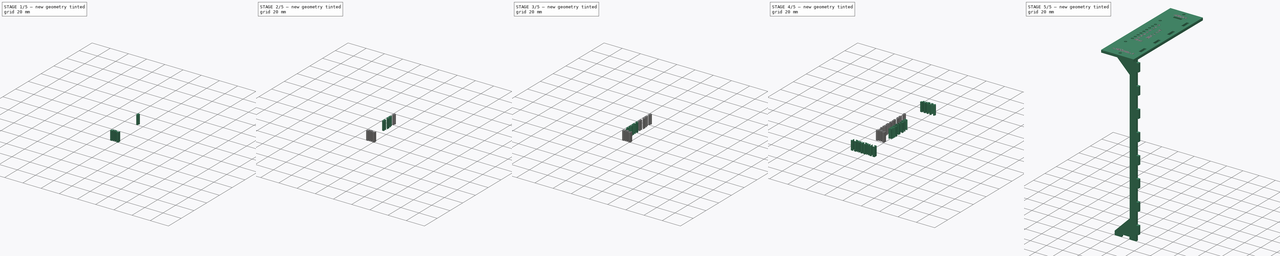
[diagram: build sequence overview — one tinted view per stage of 5, left to right]
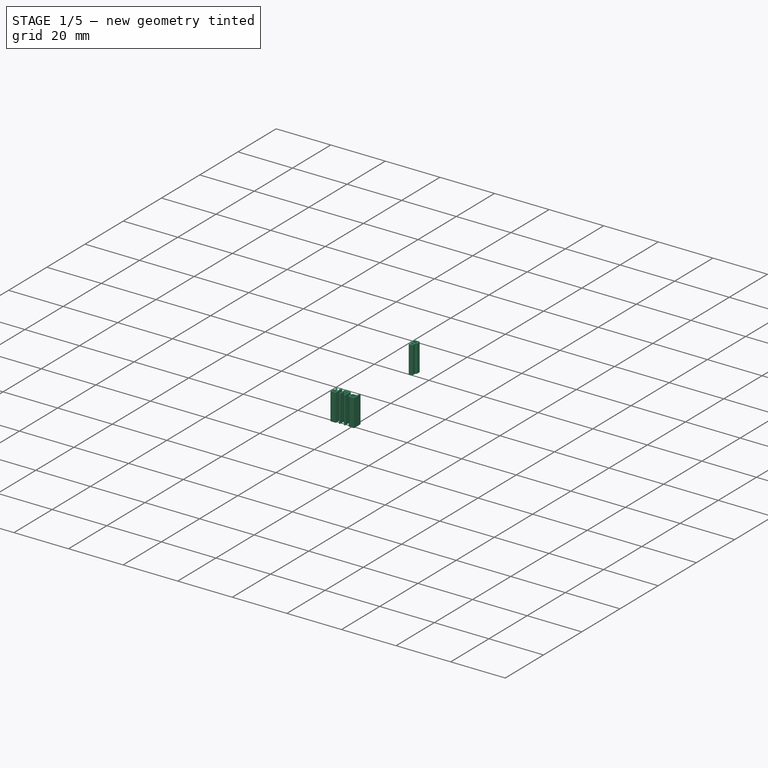
[diagram: stage 1 of 5 — iso view after this stage's code; geometry added in this stage tinted green]
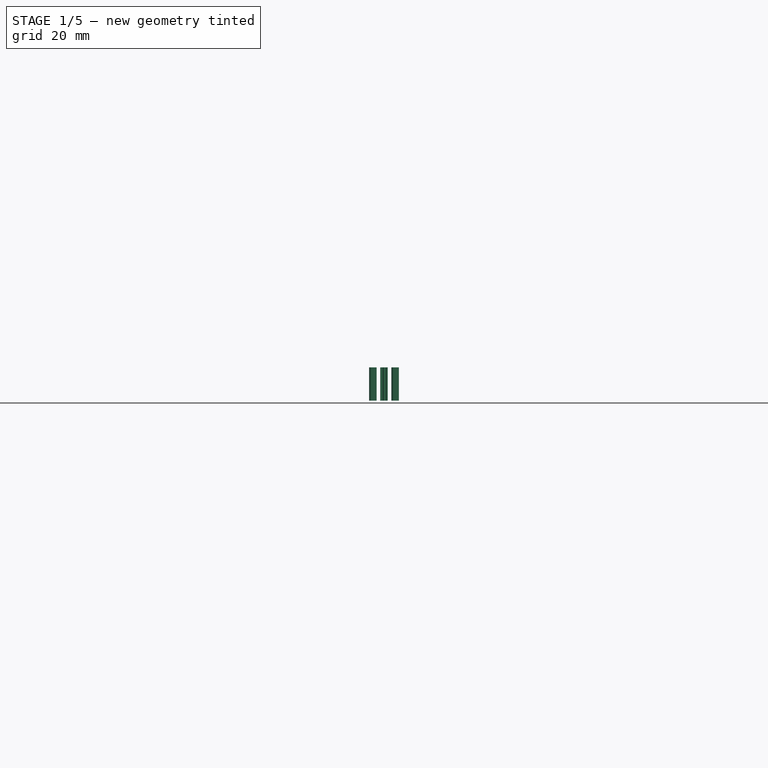
[diagram: stage 1 of 5 — front view after this stage's code; geometry added in this stage tinted green]
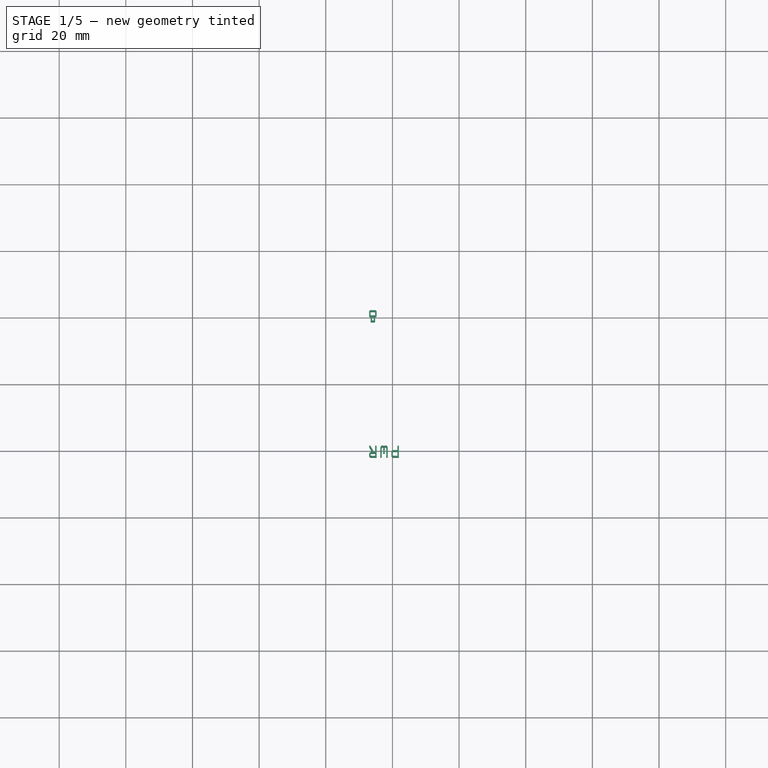
[diagram: stage 1 of 5 — top view after this stage's code; geometry added in this stage tinted green]
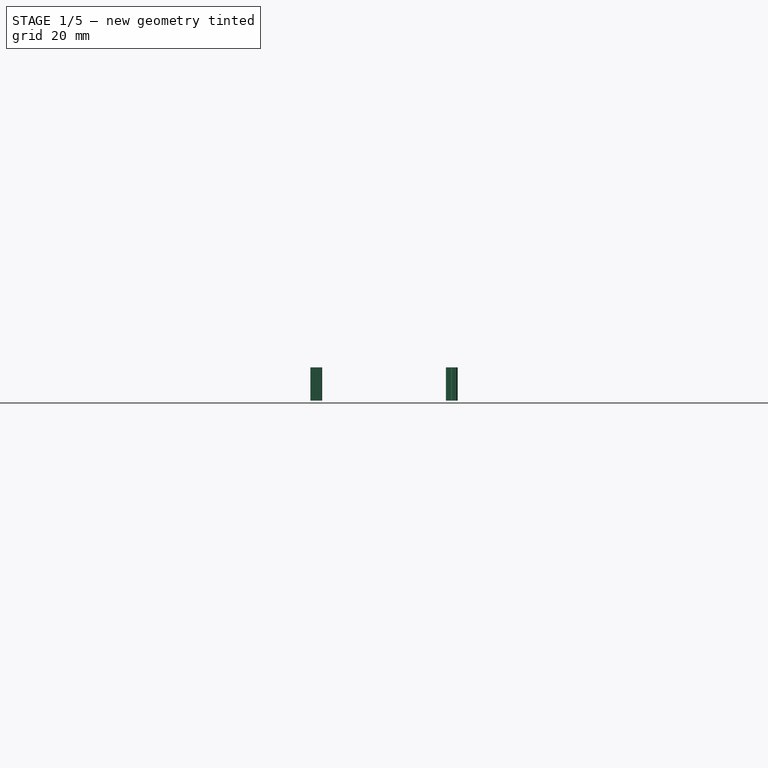
[diagram: stage 1 of 5 — right view after this stage's code; geometry added in this stage tinted green]
FCSTD DOCUMENT  (FreeCAD 0.18R16146 (Git))
Label: ZyXel_ES-108P_switch_box
License: All rights reserved
LicenseURL: http://en.wikipedia.org/wiki/All_rights_reserved
objects: Part::Part2DObjectPython×12, Part::Extrusion×12, Part::Feature×11, Part::FeaturePython×2, PartDesign::FeatureBase×2, Sketcher::SketchObject×2, PartDesign::Pocket×2, PartDesign::Body×2, App::DocumentObjectGroup×1, App::Part×1, Part::MultiFuse×1, Part::Cut×1
note: 49 computed .brp shape members not serialized (recipe doc carries the construction recipe); baked Part::Feature solids carry a one-line shape summary decoded from their .brp

FEATURE [Part::Feature] face_panel
  Placement = pos=(0,0,-1.5) rot=(0,0,1;0rad)
  shape: bbox 26.5 x 3 x 207 mm, 6 faces (baked)
FEATURE [Part::Feature] behind_panel
  Placement = pos=(0,-90.6,-1.5) rot=(0,0,1;0rad)
  shape: bbox 26.5 x 3 x 207 mm, 6 faces (baked)
FEATURE [Part::Feature] left_panel
  Placement = pos=(0,0,-1.5) rot=(0,0,1;0rad)
  shape: bbox 3 x 100 x 207 mm, 6 faces (baked)
FEATURE [Part::Feature] right_panel
  Placement = pos=(-29.5,0,-1.5) rot=(0,0,1;0rad)
  shape: bbox 3 x 100 x 207 mm, 6 faces (baked)
FEATURE [Part::Feature] bottom_panel
  Placement = pos=(0,0,-1.5) rot=(0,0,1;0rad)
  shape: bbox 26.5 x 87.6 x 3 mm, 6 faces (baked)
FEATURE [Part::Feature] top_panel
  Placement = pos=(0,0,-1.5) rot=(0,0,1;0rad)
  shape: bbox 40 x 122 x 3 mm, 6 faces (baked)
FEATURE [Part::FeaturePython] Box  # WARN: FeaturePython — macro-defined, semantics opaque (R4)
  parts = -> [face_panel,behind_panel,left_panel,right_panel,bottom_panel,top_panel]
FEATURE [App::DocumentObjectGroup] MultiJoin_origin_parts
  Group = -> [face_panel,left_panel,behind_panel,bottom_panel,top_panel]
FEATURE [Part::Feature] face_panel_tab
  shape: bbox 29.5 x 3 x 210 mm, 68 faces (baked)
FEATURE [Part::Feature] left_panel_tab
  shape: bbox 3 x 100 x 210 mm, 222 faces (baked)
FEATURE [Part::Feature] behind_panel_tab
  shape: bbox 29.5 x 3 x 210 mm, 68 faces (baked)
FEATURE [Part::Feature] bottom_panel_tab
  shape: bbox 29.5 x 93.6 x 3 mm, 42 faces (baked)
FEATURE [Part::Feature] top_panel_tab
  shape: bbox 40 x 122 x 3 mm, 66 faces (baked)
FEATURE [Part::FeaturePython] MultiJoin  # WARN: FeaturePython — macro-defined, semantics opaque (R4)
  fromParts = -> [MultiJoin_origin_parts,face_panel,left_panel,behind_panel,bottom_panel,top_panel]
  generatedParts = -> [face_panel_tab,left_panel_tab,behind_panel_tab,bottom_panel_tab,top_panel_tab]
FEATURE [PartDesign::FeatureBase] BaseFeature001
  BaseFeature = -> top_panel_tab
FEATURE [Sketcher::SketchObject] Sketch001
  ExternalGeometry = -> [BaseFeature001]
  MapMode = 5
  Placement = pos=(0,0,105) rot=(0,0,1;0rad)
  Support = -> [BaseFeature001]
  expr: Constraints[40] = Constraints.led_dia
  expr: Constraints[35] = Constraints.led_dia
  expr: Constraints[30] = Constraints.led_dia
  expr: Constraints[25] = Constraints.led_dia
  expr: Constraints[20] = Constraints.led_dia
  expr: Constraints[15] = Constraints.led_dia
  expr: Constraints[10] = Constraints.led_dia
  expr: Constraints[6] = Constraints.led_dia
  expr: Constraints[56] = Constraints.screw_dist
  expr: Constraints[55] = Constraints.spacing / 4
  expr: Constraints.screw_dist = Constraints.spacing * 2
  sketch-geometry (22):
    g0: Circle CenterX=-10 CenterY=-20.32 CenterZ=0 NormalX=0 NormalY=0 NormalZ=1 AngleXU=0 Radius=1.55
    g1: LineSegment [constr] StartX=-10 StartY=61 StartZ=0 EndX=-10 EndY=-61 EndZ=0
    g2: Circle CenterX=-10 CenterY=-15.24 CenterZ=0 NormalX=0 NormalY=0 NormalZ=1 AngleXU=0 Radius=1.55
    g3: LineSegment [constr] StartX=-10 StartY=-20.32 StartZ=0 EndX=-10 EndY=-15.24 EndZ=0
    g4: Circle CenterX=-10 CenterY=-10.16 CenterZ=0 NormalX=0 NormalY=0 NormalZ=1 AngleXU=0 Radius=1.55
    g5: LineSegment [constr] StartX=-10 StartY=-15.24 StartZ=0 EndX=-10 EndY=-10.16 EndZ=0
    g6: Circle CenterX=-10 CenterY=-5.08 CenterZ=0 NormalX=0 NormalY=0 NormalZ=1 AngleXU=0 Radius=1.55
    g7: LineSegment [constr] StartX=-10 StartY=-10.16 StartZ=0 EndX=-10 EndY=-5.08 EndZ=0
    g8: Circle CenterX=-10 CenterY=0 CenterZ=0 NormalX=0 NormalY=0 NormalZ=1 AngleXU=0 Radius=1.55
    g9: LineSegment [constr] StartX=-10 StartY=-5.08 StartZ=0 EndX=-10 EndY=0 EndZ=0
    g10: Circle CenterX=-10 CenterY=5.08 CenterZ=0 NormalX=0 NormalY=0 NormalZ=1 AngleXU=0 Radius=1.55
    g11: LineSegment [constr] StartX=-10 StartY=0 StartZ=0 EndX=-10 EndY=5.08 EndZ=0
    g12: Circle CenterX=-10 CenterY=10.16 CenterZ=0 NormalX=0 NormalY=0 NormalZ=1 AngleXU=0 Radius=1.55
    g13: LineSegment [constr] StartX=-10 StartY=5.08 StartZ=0 EndX=-10 EndY=10.16 EndZ=0
    g14: Circle CenterX=-10 CenterY=15.24 CenterZ=0 NormalX=0 NormalY=0 NormalZ=1 AngleXU=0 Radius=1.55
    g15: LineSegment [constr] StartX=-10 StartY=10.16 StartZ=0 EndX=-10 EndY=15.24 EndZ=0
    g16: Circle CenterX=-10 CenterY=20.32 CenterZ=0 NormalX=0 NormalY=0 NormalZ=1 AngleXU=0 Radius=1.55
    g17: LineSegment [constr] StartX=-10 StartY=15.24 StartZ=0 EndX=-10 EndY=20.32 EndZ=0
    g18: Circle CenterX=-11.27 CenterY=30.48 CenterZ=0 NormalX=0 NormalY=0 NormalZ=1 AngleXU=0 Radius=1.6
    g19: Circle CenterX=-11.27 CenterY=-30.48 CenterZ=0 NormalX=0 NormalY=0 NormalZ=1 AngleXU=0 Radius=1.6
    g20: Circle CenterX=0 CenterY=56 CenterZ=0 NormalX=0 NormalY=0 NormalZ=1 AngleXU=0 Radius=1.6
    g21: Circle CenterX=0 CenterY=-56 CenterZ=0 NormalX=0 NormalY=0 NormalZ=1 AngleXU=0 Radius=1.6
  constraints (59):
    c: Diameter(g0) = 3.1  'led_dia'
    c: Vertical(g1)
    c: PointOnObject(g1,g-4)
    c: PointOnObject(g1,g-3)
    c: DistanceX(g-4,g1) = 10
    c: PointOnObject(g0,g1)
    c: Diameter(g2) = 3.1
    c: Coincident(g0,g3)
    c: Coincident(g2,g3)
    c: Distance(g3) = 5.08  'spacing'
    c: Diameter(g4) = 3.1
    c: Coincident(g2,g5)
    c: Coincident(g4,g5)
    c: Equal(g3,g5)
    c: Parallel(g5,g3)
    c: Diameter(g6) = 3.1
    c: Coincident(g4,g7)
    c: Coincident(g6,g7)
    c: Equal(g3,g7)
    c: Parallel(g7,g3)
    c: Diameter(g8) = 3.1
    c: Coincident(g6,g9)
    c: Coincident(g8,g9)
    c: Equal(g3,g9)
    c: Parallel(g9,g3)
    c: Diameter(g10) = 3.1
    c: Coincident(g8,g11)
    c: Coincident(g10,g11)
    c: Equal(g3,g11)
    c: Parallel(g11,g3)
    c: Diameter(g12) = 3.1
    c: Coincident(g10,g13)
    c: Coincident(g12,g13)
    c: Equal(g3,g13)
    c: Parallel(g13,g3)
    c: Diameter(g14) = 3.1
    c: Coincident(g12,g15)
    c: Coincident(g14,g15)
    c: Equal(g3,g15)
    c: Parallel(g15,g3)
    c: Diameter(g16) = 3.1
    c: Coincident(g14,g17)
    c: Coincident(g16,g17)
    c: Equal(g3,g17)
    c: Parallel(g17,g3)
    c: PointOnObject(g1,g1)
    c: Diameter(g18) = 3.2
    c: Equal(g18,g19) = 3.2
    c: Vertical(g19,g18)
    c: DistanceY(g19,g0) = 10.16  'screw_dist'
    c: Equal(g18,g20) = 3.2
    c: PointOnObject(g21,g-2)
    c: DistanceY(g21,g20) = 112
    c: Symmetric(g20,g21,g-1)
    c: Diameter(g21) = 3.2
    c: DistanceX(g19,g0) = 1.27
    c: DistanceY(g16,g18) = 10.16
    c: Vertical(g17)
    c: PointOnObject(g8,g-1)
FEATURE [PartDesign::Pocket] Pocket001
  BaseFeature = -> BaseFeature001
  Length = 5
  Length2 = 100
  Profile = -> Sketch001
  Type = 1
FEATURE [Part::Extrusion] Extrude010
  Base = -> ShapeString010
  Dir = (0,0,1)
  DirMode = 2
  FaceMakerClass = Part::FaceMakerBullseye
  LengthFwd = 10
  LengthRev = 0
  Placement = pos=(-101.422,-3.8,0) rot=(0,0,1;3.14159rad)
  Solid = true
  Symmetric = true
FEATURE [Part::Part2DObjectPython] ShapeString011  label="ShapeString_PWR"  # Draft 2D object (typed FeaturePython)
  FontFile = <path>
  Placement = pos=(28.53,-20.56,105) rot=(0,0,1;0rad)
  Size = 2.1
  String = PWR
  Support = -> [Pocket001]
  Tracking = 0
FEATURE [Part::Extrusion] Extrude011
  Base = -> ShapeString011
  Dir = (0,0,1)
  DirMode = 2
  FaceMakerClass = Part::FaceMakerBullseye
  LengthFwd = 10
  LengthRev = 0
  Placement = pos=(31,-39,0) rot=(0,0,1;3.14159rad)
  Solid = true
  Symmetric = true
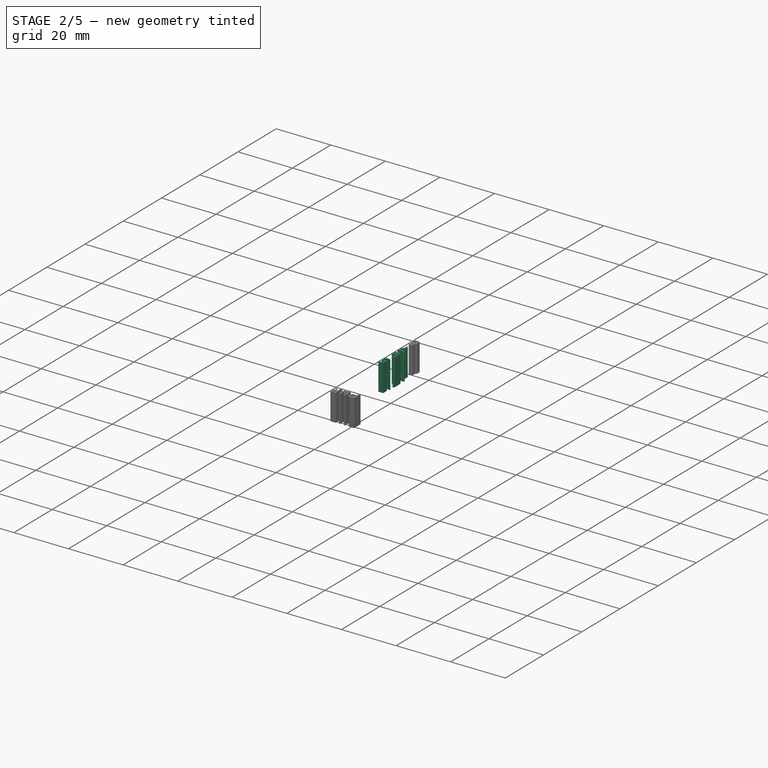
[diagram: stage 2 of 5 — iso view after this stage's code; geometry added in this stage tinted green]
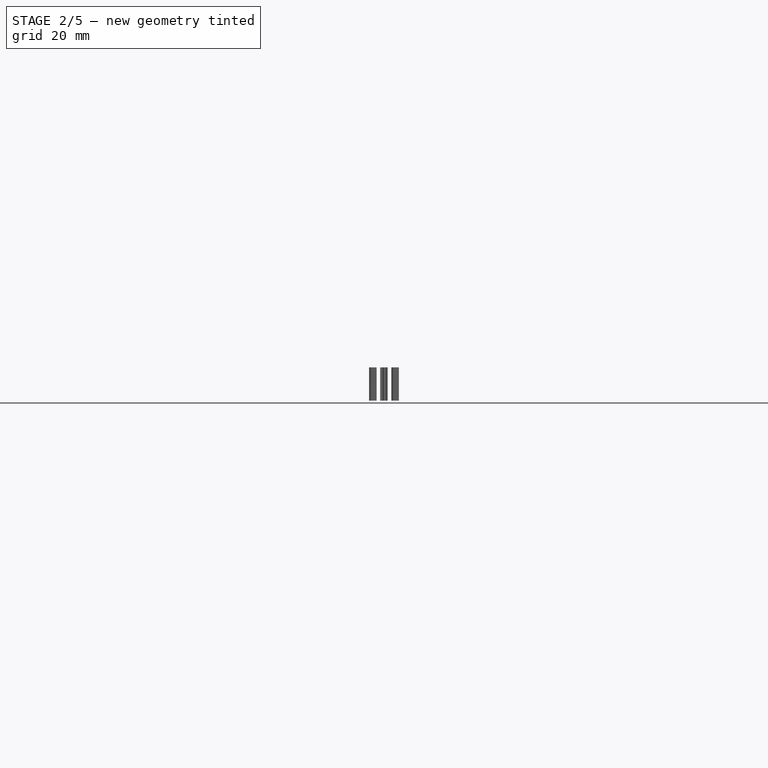
[diagram: stage 2 of 5 — front view after this stage's code; geometry added in this stage tinted green]
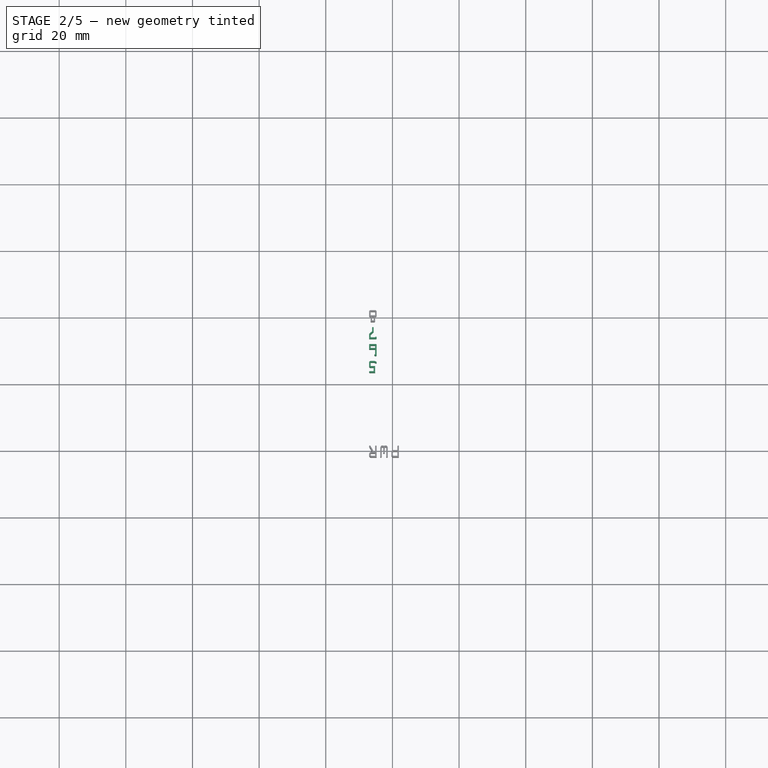
[diagram: stage 2 of 5 — top view after this stage's code; geometry added in this stage tinted green]
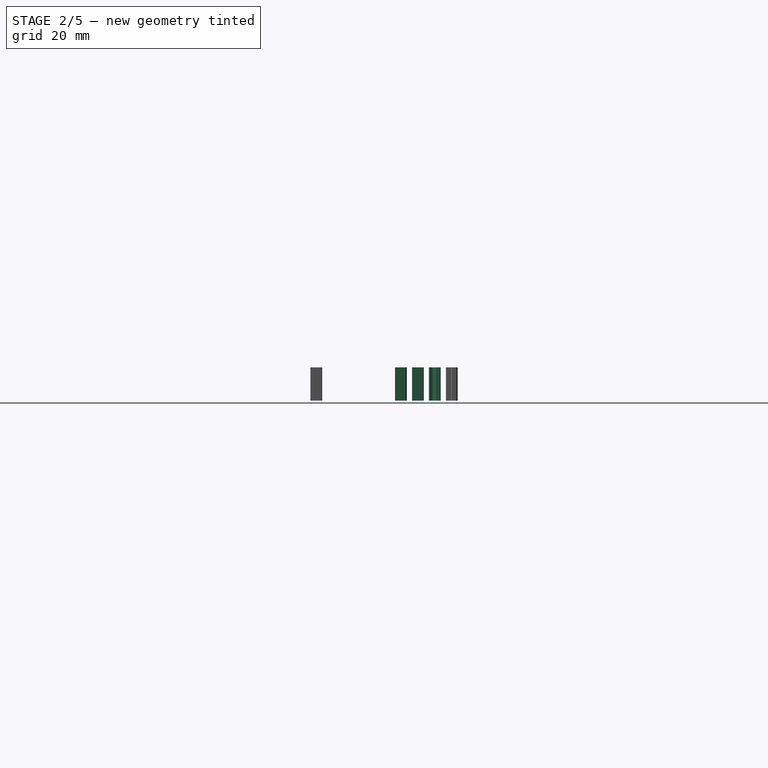
[diagram: stage 2 of 5 — right view after this stage's code; geometry added in this stage tinted green]
FEATURE [Part::Extrusion] Extrude007
  Base = -> ShapeString007
  Dir = (0,0,1)
  DirMode = 2
  FaceMakerClass = Part::FaceMakerBullseye
  LengthFwd = 10
  LengthRev = 0
  Placement = pos=(-112.422,-7.04,0) rot=(0,0,1;3.14159rad)
  Solid = true
  Symmetric = true
FEATURE [Part::Extrusion] Extrude008
  Base = -> ShapeString008
  Dir = (0,0,1)
  DirMode = 2
  FaceMakerClass = Part::FaceMakerBullseye
  LengthFwd = 10
  LengthRev = 0
  Placement = pos=(-121.422,14.04,0) rot=(0,0,1;3.14159rad)
  Solid = true
  Symmetric = true
FEATURE [Part::Extrusion] Extrude009
  Base = -> ShapeString009
  Dir = (0,0,1)
  DirMode = 2
  FaceMakerClass = Part::FaceMakerBullseye
  LengthFwd = 10
  LengthRev = 0
  Placement = pos=(-93.4218,18.12,0) rot=(0,0,1;3.14159rad)
  Solid = true
  Symmetric = true
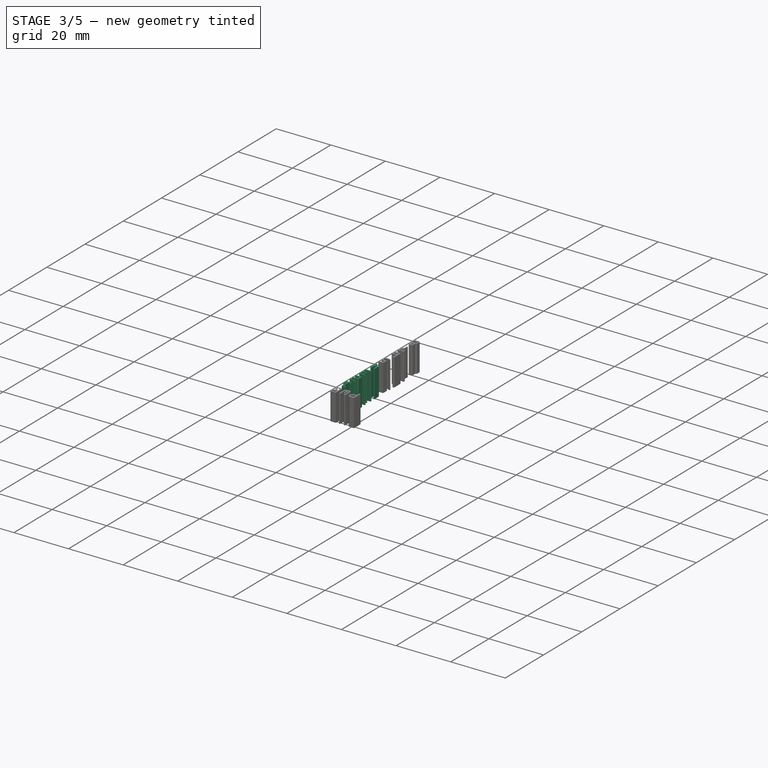
[diagram: stage 3 of 5 — iso view after this stage's code; geometry added in this stage tinted green]
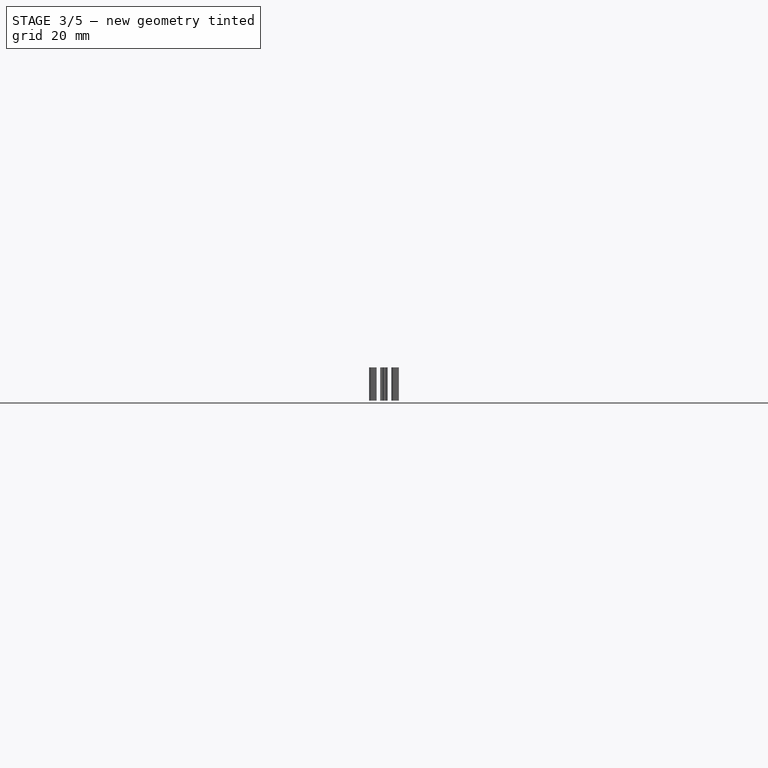
[diagram: stage 3 of 5 — front view after this stage's code; geometry added in this stage tinted green]
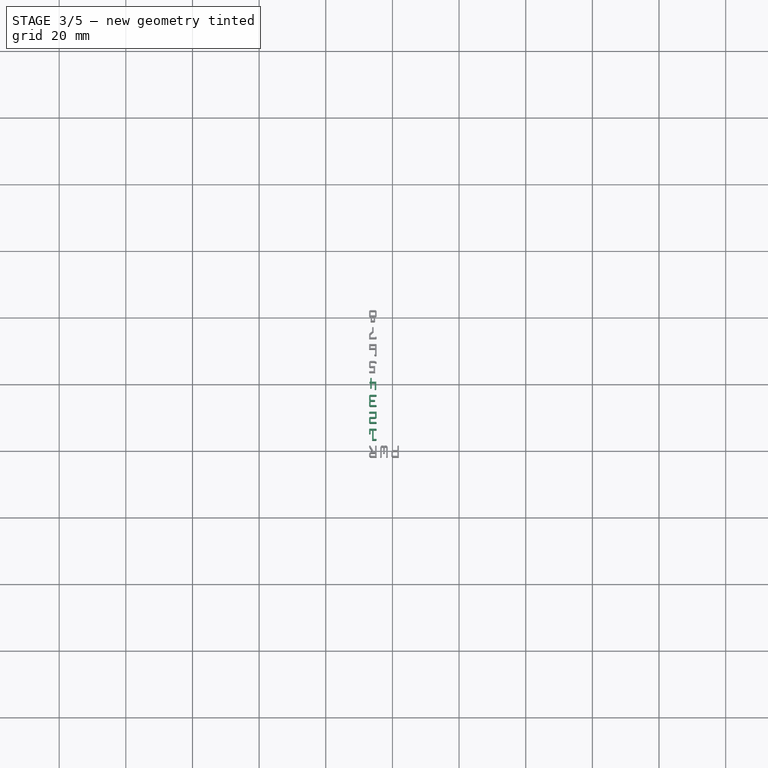
[diagram: stage 3 of 5 — top view after this stage's code; geometry added in this stage tinted green]
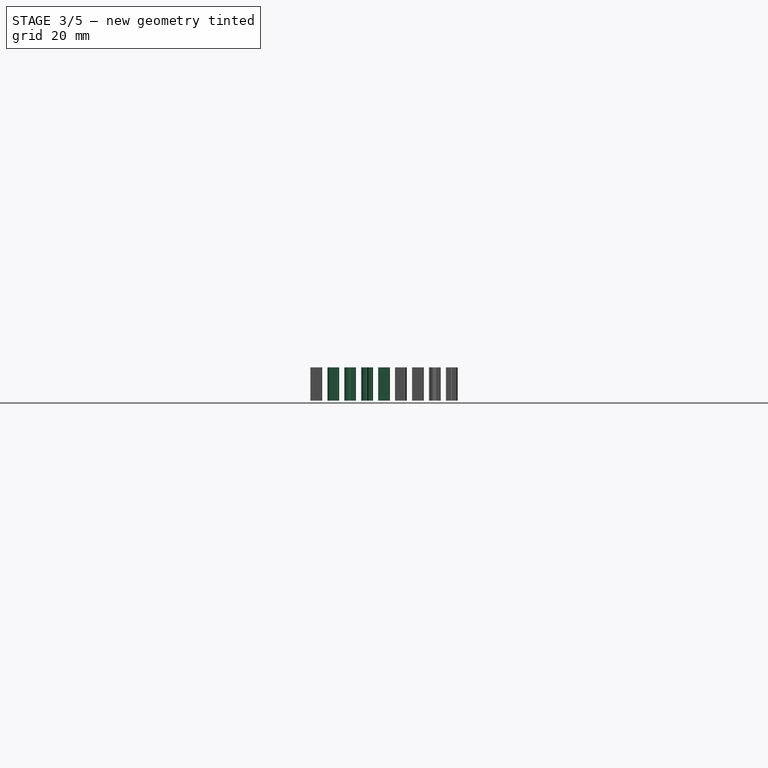
[diagram: stage 3 of 5 — right view after this stage's code; geometry added in this stage tinted green]
FEATURE [Part::Extrusion] Extrude003
  Base = -> ShapeString003
  Dir = (0,0,1)
  DirMode = 2
  FaceMakerClass = Part::FaceMakerBullseye
  LengthFwd = 10
  LengthRev = 0
  Placement = pos=(31.58,-105.36,0) rot=(0,0,1;3.14159rad)
  Solid = true
  Symmetric = true
FEATURE [Part::Extrusion] Extrude004
  Base = -> ShapeString004
  Dir = (0,0,1)
  DirMode = 2
  FaceMakerClass = Part::FaceMakerBullseye
  LengthFwd = 10
  LengthRev = 0
  Placement = pos=(-7.79,-23.1,0) rot=(0,0,1;3.14159rad)
  Solid = true
  Symmetric = true
FEATURE [Part::Extrusion] Extrude005
  Base = -> ShapeString005
  Dir = (0,0,1)
  DirMode = 2
  FaceMakerClass = Part::FaceMakerBullseye
  LengthFwd = 10
  LengthRev = 0
  Placement = pos=(-4.84182,-7.68,0) rot=(0,0,1;3.14159rad)
  Solid = true
  Symmetric = true
FEATURE [Part::Extrusion] Extrude006
  Base = -> ShapeString006
  Dir = (0,0,1)
  DirMode = 2
  FaceMakerClass = Part::FaceMakerBullseye
  LengthFwd = 10
  LengthRev = 0
  Placement = pos=(-7.3548,6.6,0) rot=(0,0,1;3.14159rad)
  Solid = true
  Symmetric = true
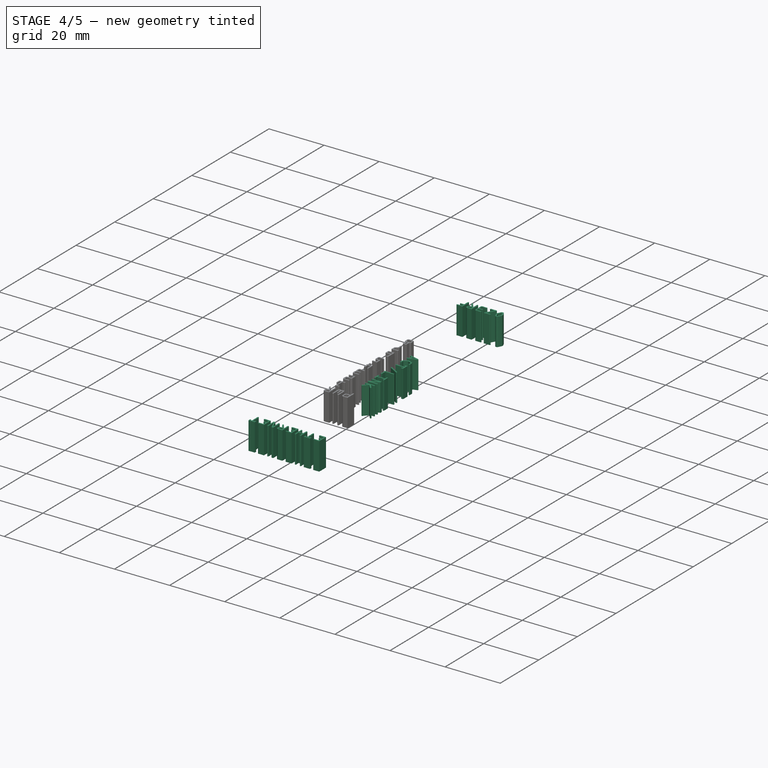
[diagram: stage 4 of 5 — iso view after this stage's code; geometry added in this stage tinted green]
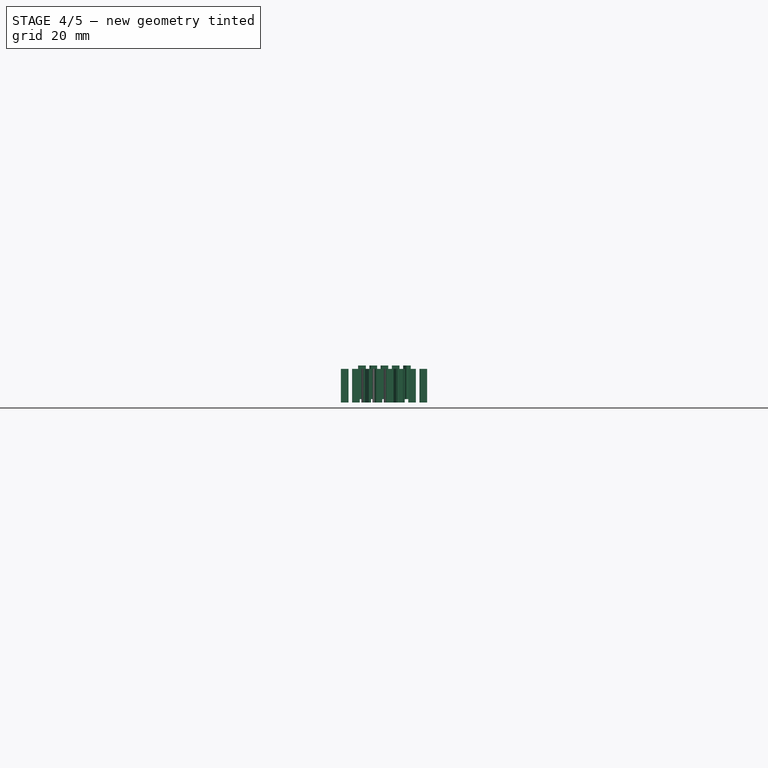
[diagram: stage 4 of 5 — front view after this stage's code; geometry added in this stage tinted green]
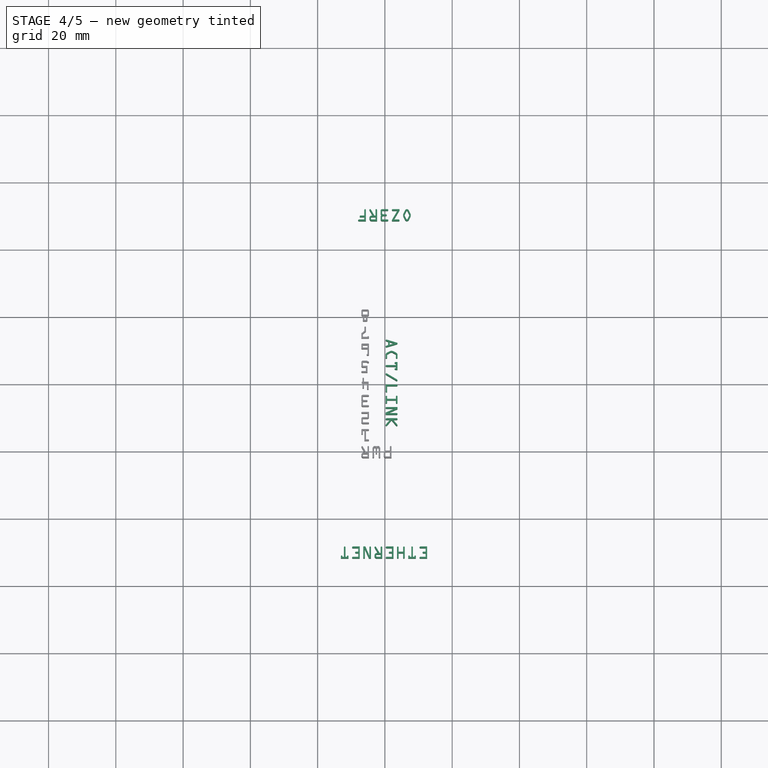
[diagram: stage 4 of 5 — top view after this stage's code; geometry added in this stage tinted green]
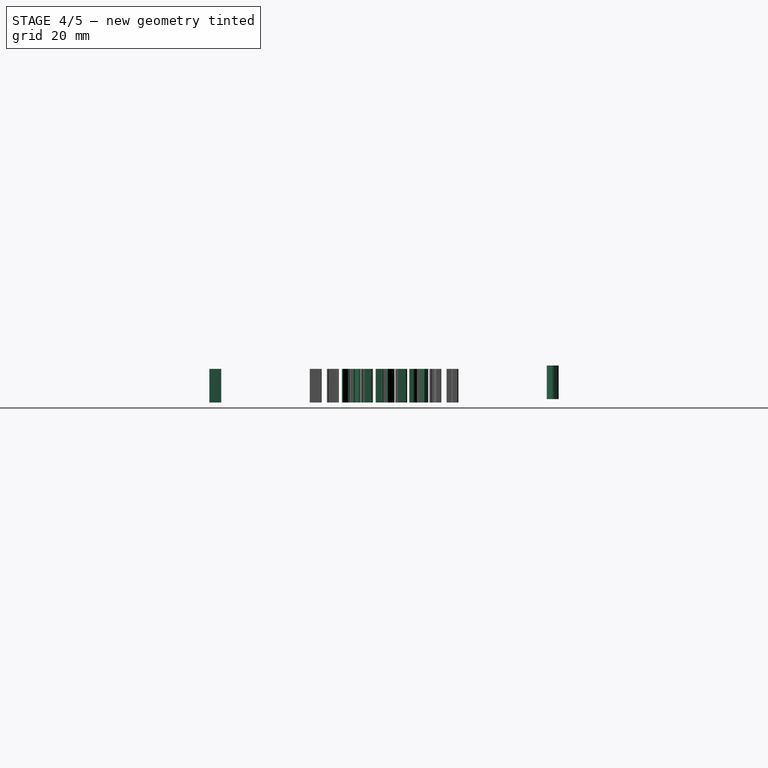
[diagram: stage 4 of 5 — right view after this stage's code; geometry added in this stage tinted green]
FEATURE [PartDesign::Body] Body
  BaseFeature = -> behind_panel_tab
  Group = -> [BaseFeature,Sketch,Pocket]
  Origin = -> Origin
  Tip = -> Pocket
FEATURE [App::Part] Part
  Group = -> [Body001,top_panel_tab,MultiJoin,top_panel,Box,right_panel,bottom_panel,left_panel,face_panel,behind_panel,left_panel_tab,MultiJoin_origin_parts,face_panel_tab,bottom_panel_tab,behind_panel_tab,Body]
  Origin = -> Origin001
FEATURE [Part::Part2DObjectPython] ShapeString  label="ShapeString_ETHERNET"  # Draft 2D object (typed FeaturePython)
  FontFile = <path>
  Placement = pos=(-0.08316,51.29,105) rot=(0,0,1;0rad)
  Size = 2.1
  String = ETHERNET
  Support = -> [Pocket001]
  Tracking = 0
FEATURE [Part::Extrusion] Extrude
  Base = -> ShapeString
  Dir = (0,0,1)
  DirMode = 2
  FaceMakerClass = Part::FaceMakerBullseye
  LengthFwd = 10
  LengthRev = 0
  Placement = pos=(13,3,0) rot=(0,0,1;3.14159rad)
  Solid = true
  Symmetric = true
FEATURE [Part::Part2DObjectPython] ShapeString001  label="ShapeString_ACT_LINK"  # Draft 2D object (typed FeaturePython)
  FontFile = <path>
  Placement = pos=(4.25,10.21,105) rot=(0,0,1;0rad)
  Size = 2.1
  String = ACT/LINK
  Support = -> [Pocket001]
  Tracking = 0
FEATURE [Part::Extrusion] Extrude001
  Base = -> ShapeString001
  Dir = (0,0,1)
  DirMode = 2
  FaceMakerClass = Part::FaceMakerBullseye
  LengthFwd = 10
  LengthRev = 0
  Placement = pos=(-10,18,0) rot=(0,0,-1;1.5708rad)
  Solid = true
  Symmetric = true
FEATURE [Part::Part2DObjectPython] ShapeString002  label="ShapeString_OZ3RF"  # Draft 2D object (typed FeaturePython)
  FontFile = <path>
  Placement = pos=(96.79,-20,105) rot=(0,0,1;0rad)
  Size = 2.1
  String = OZ3RF
  Tracking = 0
FEATURE [Part::Part2DObjectPython] ShapeString003  label="ShapeString_1"  # Draft 2D object (typed FeaturePython)
  FontFile = <path>
  Placement = pos=(35.79,-92,105) rot=(0,0,1;0rad)
  Size = 2.1
  String = 1
  Tracking = 0
FEATURE [Part::Part2DObjectPython] ShapeString004  label="ShapeString_2"  # Draft 2D object (typed FeaturePython)
  FontFile = <path>
  Placement = pos=(-3.58,-14.82,105) rot=(0,0,1;0rad)
  Size = 2.1
  String = 2
  Tracking = 0
FEATURE [Part::Part2DObjectPython] ShapeString005  label="ShapeString_3"  # Draft 2D object (typed FeaturePython)
  FontFile = <path>
  Placement = pos=(-0.63,-4.48,105) rot=(0,0,1;0rad)
  Size = 2.1
  String = 3
  Tracking = 0
FEATURE [Part::Part2DObjectPython] ShapeString006  label="ShapeString_4"  # Draft 2D object (typed FeaturePython)
  FontFile = <path>
  Placement = pos=(-3.14,4.72,105) rot=(0,0,1;0rad)
  Size = 2.1
  String = 4
  Support = -> [Pocket001]
  Tracking = 0
FEATURE [Part::Part2DObjectPython] ShapeString007  label="ShapeString_5"  # Draft 2D object (typed FeaturePython)
  FontFile = <path>
  Placement = pos=(-108.21,-14,105) rot=(0,0,1;0rad)
  Size = 2.1
  String = 5
  Tracking = 0
FEATURE [Part::Part2DObjectPython] ShapeString008  label="ShapeString_6"  # Draft 2D object (typed FeaturePython)
  FontFile = <path>
  Placement = pos=(-117.21,2,105) rot=(0,0,1;0rad)
  Size = 2.1
  String = 6
  Tracking = 0
FEATURE [Part::Part2DObjectPython] ShapeString009  label="ShapeString_7"  # Draft 2D object (typed FeaturePython)
  FontFile = <path>
  Placement = pos=(-89.21,1,105) rot=(0,0,1;0rad)
  Size = 2.1
  String = 7
  Tracking = 0
FEATURE [Part::Part2DObjectPython] ShapeString010  label="ShapeString_8"  # Draft 2D object (typed FeaturePython)
  FontFile = <path>
  Placement = pos=(-97.21,-26,105) rot=(0,0,1;0rad)
  Size = 2.1
  String = 8
  Tracking = 0
FEATURE [Part::Extrusion] Extrude002
  Base = -> ShapeString002
  Dir = (0,0,1)
  DirMode = 2
  FaceMakerClass = Part::FaceMakerBullseye
  LengthFwd = 10
  LengthRev = 0
  Placement = pos=(105,32,1) rot=(0,0,1;3.14159rad)
  Solid = true
  Symmetric = true
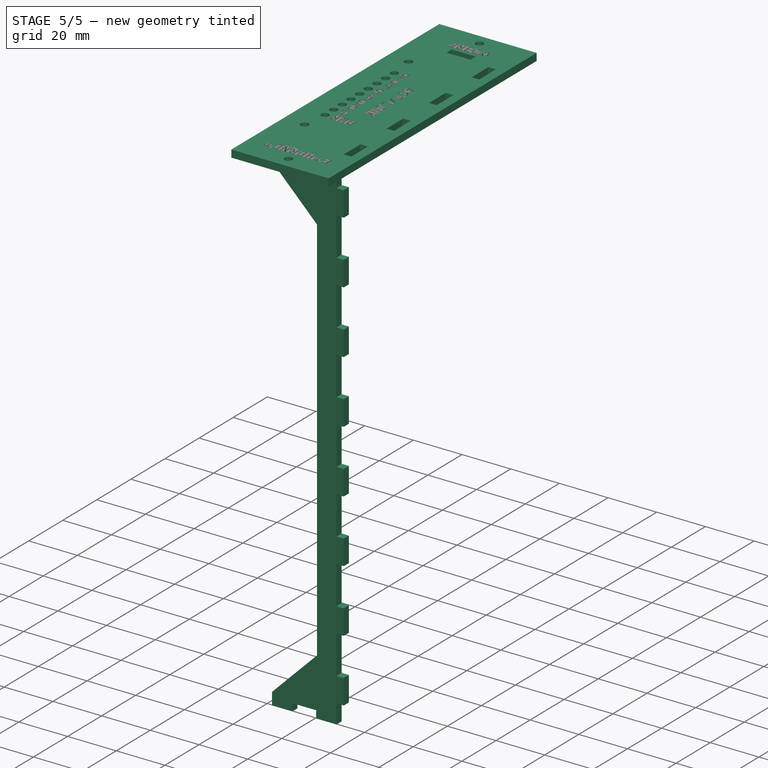
[diagram: stage 5 of 5 — iso view after this stage's code; geometry added in this stage tinted green]
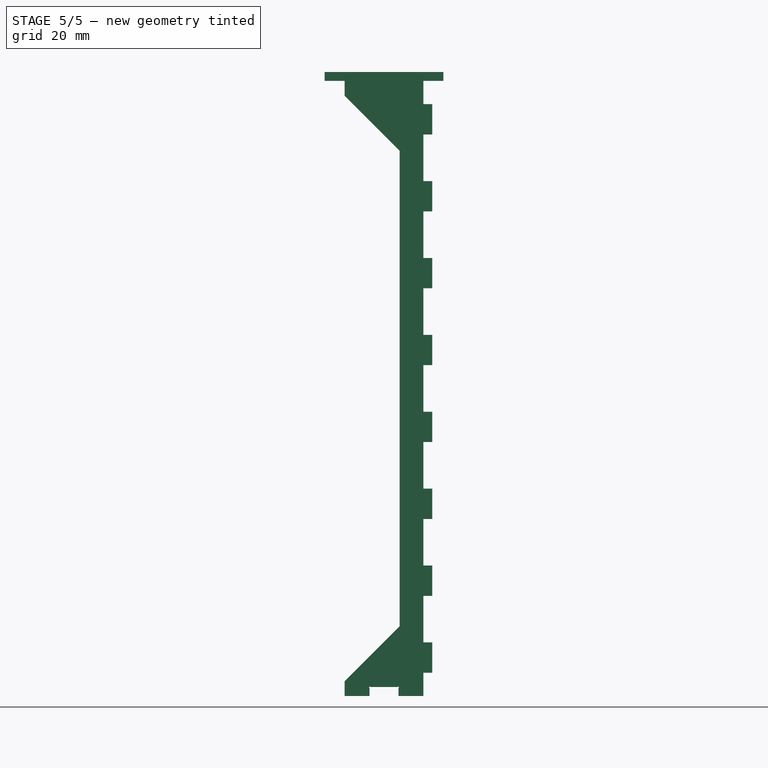
[diagram: stage 5 of 5 — front view after this stage's code; geometry added in this stage tinted green]
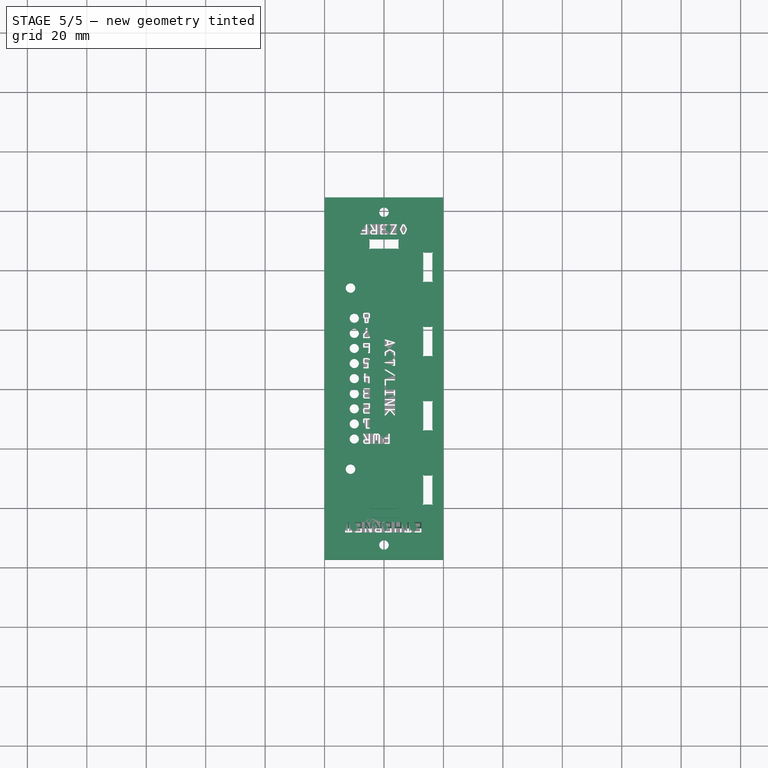
[diagram: stage 5 of 5 — top view after this stage's code; geometry added in this stage tinted green]
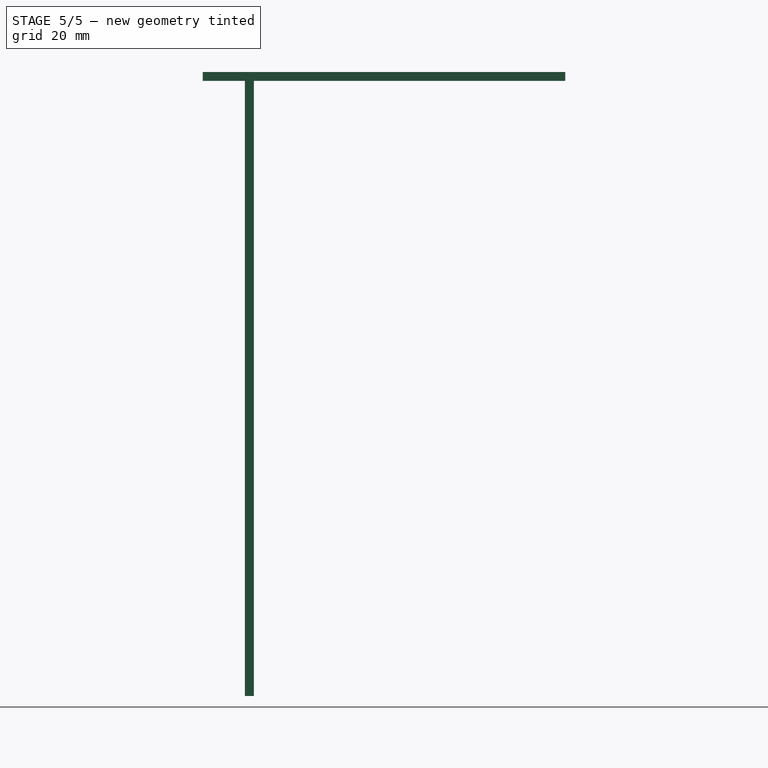
[diagram: stage 5 of 5 — right view after this stage's code; geometry added in this stage tinted green]
FEATURE [PartDesign::Body] Body001
  BaseFeature = -> top_panel_tab
  Group = -> [BaseFeature001,Sketch001,Pocket001]
  Origin = -> Origin002
  Tip = -> Pocket001
FEATURE [PartDesign::FeatureBase] BaseFeature
  BaseFeature = -> behind_panel_tab
FEATURE [Sketcher::SketchObject] Sketch
  ExternalGeometry = -> [BaseFeature]
  MapMode = 5
  Placement = pos=(0,-46.8,0) rot=(1,0,0;1.5708rad)
  Support = -> [BaseFeature]
  expr: Constraints[10] = Constraints.angle
  expr: Constraints[8] = Constraints.top_len
  sketch-geometry (4):
    g0: LineSegment StartX=-13.25 StartY=97 StartZ=0 EndX=5.25 EndY=78.5 EndZ=0
    g1: LineSegment StartX=5.25 StartY=78.5 StartZ=0 EndX=5.25 EndY=-81.5 EndZ=0
    g2: LineSegment StartX=5.25 StartY=-81.5 StartZ=0 EndX=-13.25 EndY=-100 EndZ=0
    g3: LineSegment StartX=-13.25 StartY=-100 StartZ=0 EndX=-13.25 EndY=97 EndZ=0
  constraints (12):
    c: PointOnObject(g0,g-3)
    c: Coincident(g0,g1)
    c: Vertical(g1)
    c: Coincident(g1,g2)
    c: PointOnObject(g2,g-3)
    c: Coincident(g2,g3)
    c: Coincident(g3,g0)
    c: DistanceY(g0,g-3) = 5  'top_len'
    c: DistanceY(g-3,g2) = 5
    c: Angle(g2,g3) = 0.785398  'angle'
    c: Angle(g3,g0) = 0.785398
    c: DistanceX(g0,g-4) = 8
FEATURE [PartDesign::Pocket] Pocket
  BaseFeature = -> BaseFeature
  Length = 5
  Length2 = 100
  Profile = -> Sketch
  Type = 1
FEATURE [Part::MultiFuse] Fusion
  Shapes = -> [Extrude011,Extrude,Extrude001,Extrude002,Extrude003,Extrude004,Extrude005,Extrude006,Extrude007,Extrude008,Extrude009,Extrude010]
FEATURE [Part::Cut] Cut
  Base = -> Pocket001
  Tool = -> Fusion
note: 12 file-system paths scrubbed to <path> (originals preserved in the JSON sidecar)
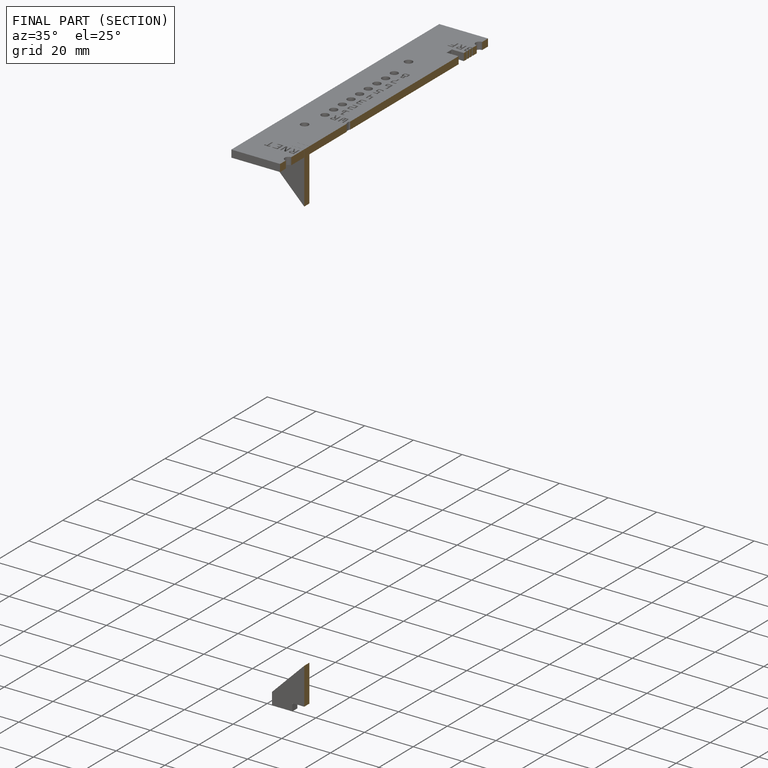
[diagram: finished part — half-section view (interior)]
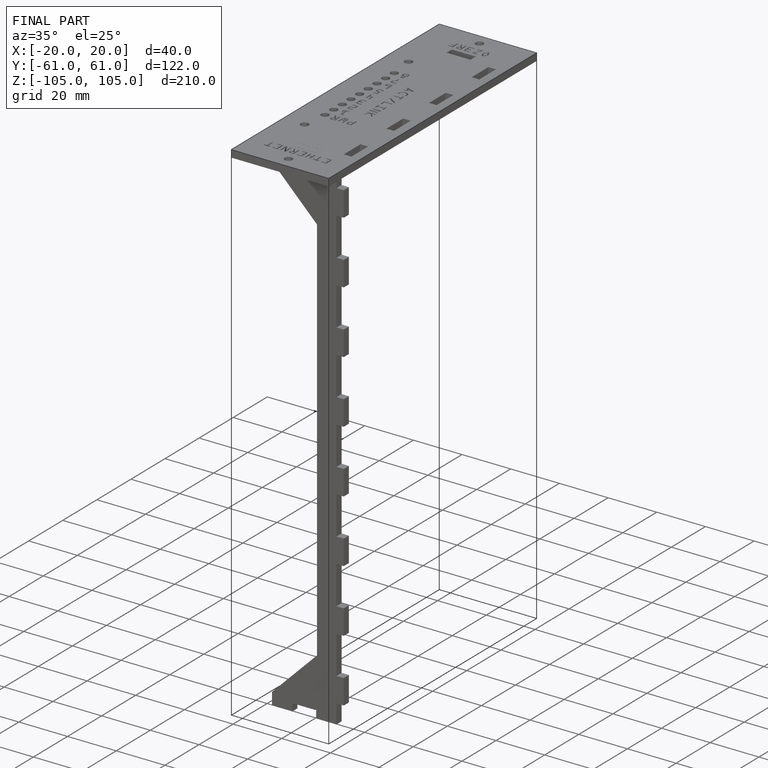
[diagram: finished part — iso view with bounding-box wireframe]
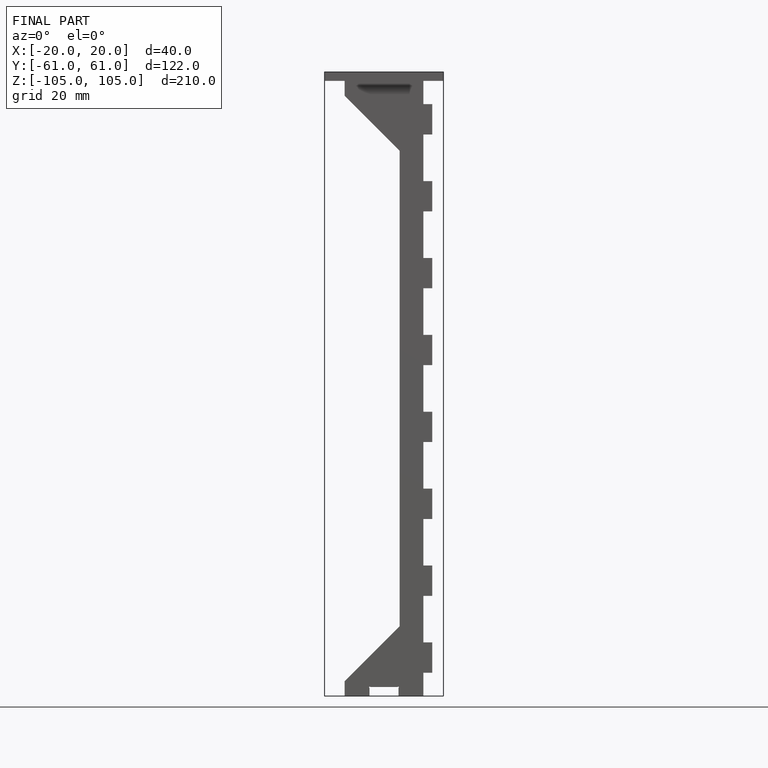
[diagram: finished part — front view with bounding-box wireframe]
